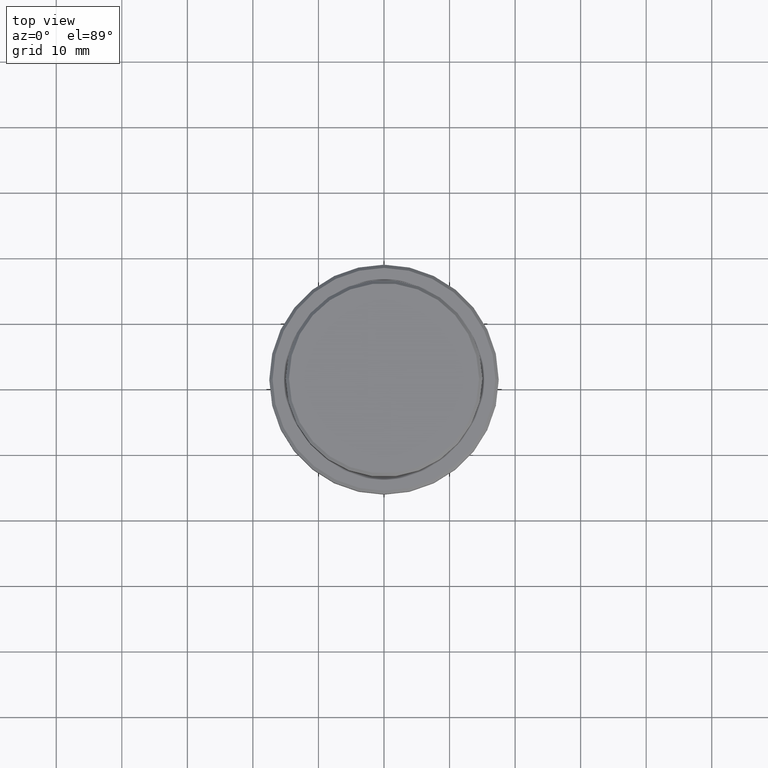
[diagram: clean part render]
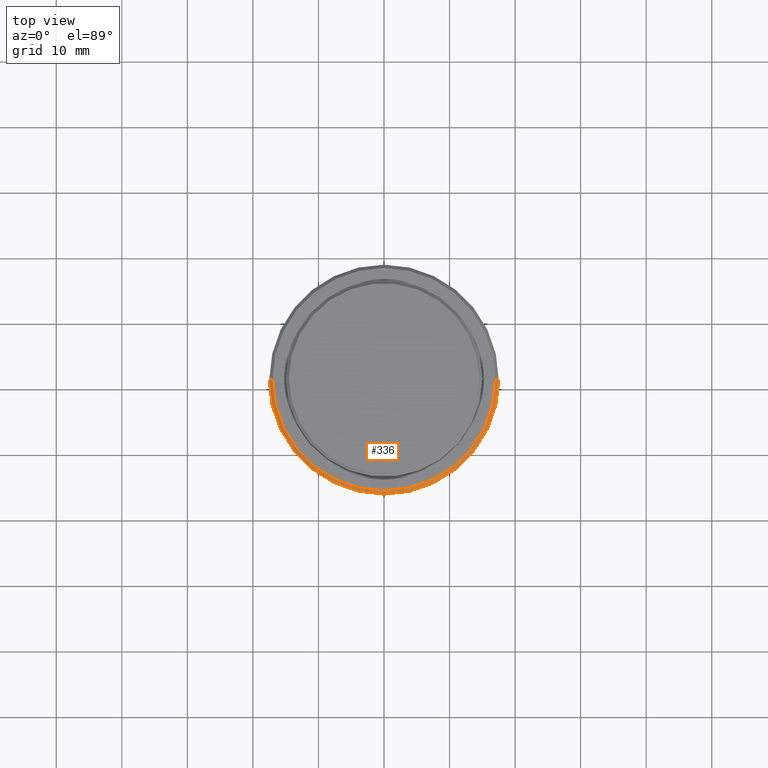
[diagram: same view with one face highlighted and labeled with its STEP entity id]
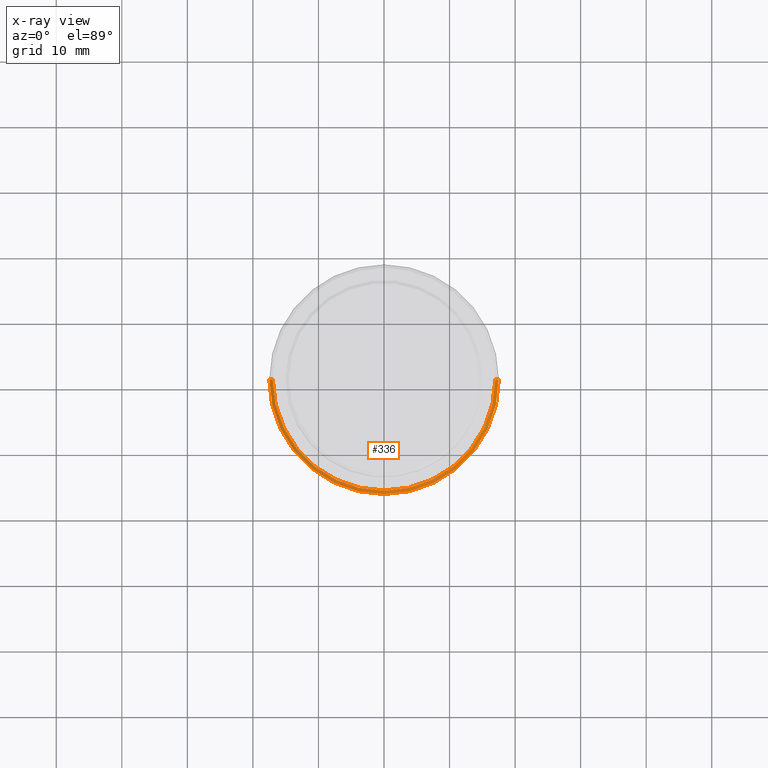
[diagram: x-ray of the same camera — body ghosted, the highlighted face saturated]
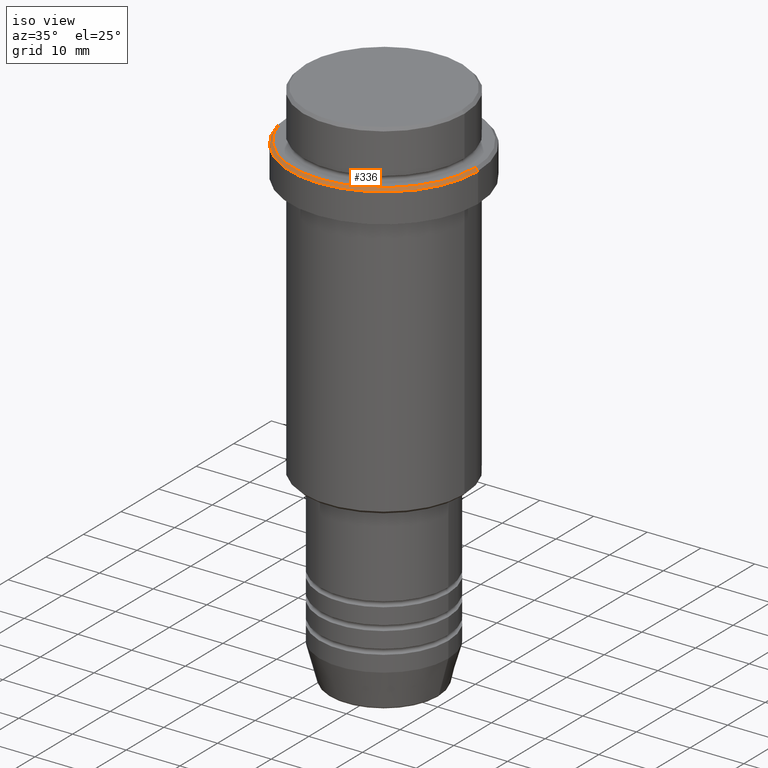
[diagram: same view with one face highlighted and labeled with its STEP entity id]
A machine part, top view. The second image highlights one B-rep face of the part: STEP entity #336.
The next image is the same camera in x-ray: the body ghosted, the highlighted face saturated — about 0% of this face is hidden behind the body in this view.
A second angle (iso view) of the same face is appended — the face is thin or edge-on in the first view.
In plain terms, the highlighted conical surface has half-angle 45 deg.
Its self-contained STEP definition (entity closure, byte-faithful):
#21 = LINE ( 'NONE', #1332, #367 ) ;
#91 = EDGE_CURVE ( 'NONE', #609, #312, #21, .T. ) ;
#139 = VECTOR ( 'NONE', #866, 1000.000000000000114 ) ;
#180 = EDGE_CURVE ( 'NONE', #879, #312, #1265, .T. ) ;
#275 = CARTESIAN_POINT ( 'NONE',  ( 0.000000000000000000, 0.000000000000000000, -9.500000000000026645 ) ) ;
#312 = VERTEX_POINT ( 'NONE', #732 ) ;
#336 = ADVANCED_FACE ( 'NONE', ( #1164 ), #906, .T. ) ;
#367 = VECTOR ( 'NONE', #577, 1000.000000000000114 ) ;
#414 = LINE ( 'NONE', #773, #139 ) ;
#454 = DIRECTION ( 'NONE',  ( 1.000000000000000000, 0.000000000000000000, 0.000000000000000000 ) ) ;
#500 = DIRECTION ( 'NONE',  ( 0.000000000000000000, 0.000000000000000000, -1.000000000000000000 ) ) ;
#522 = CARTESIAN_POINT ( 'NONE',  ( 16.99999999999997513, 2.112515728529182883E-15, -9.000000000000000000 ) ) ;
#531 = ORIENTED_EDGE ( 'NONE', *, *, #91, .T. ) ;
#577 = DIRECTION ( 'NONE',  ( -0.7071067811865474617, 0.000000000000000000, -0.7071067811865474617 ) ) ;
#609 = VERTEX_POINT ( 'NONE', #1056 ) ;
#660 = AXIS2_PLACEMENT_3D ( 'NONE', #1222, #674, #454 ) ;
#674 = DIRECTION ( 'NONE',  ( -0.000000000000000000, -0.000000000000000000, 1.000000000000000000 ) ) ;
#732 = CARTESIAN_POINT ( 'NONE',  ( -17.50000000000000000, 2.143131898507868248E-15, -9.500000000000026645 ) ) ;
#747 = DIRECTION ( 'NONE',  ( 0.000000000000000000, 0.000000000000000000, -1.000000000000000000 ) ) ;
#755 = CIRCLE ( 'NONE', #660, 16.99999999999997513 ) ;
#773 = CARTESIAN_POINT ( 'NONE',  ( 16.99999999999997513, 2.081899558550497519E-15, -9.000000000000000000 ) ) ;
#782 = ORIENTED_EDGE ( 'NONE', *, *, #1096, .F. ) ;
#809 = CARTESIAN_POINT ( 'NONE',  ( 17.50000000000000000, 0.000000000000000000, -9.500000000000026645 ) ) ;
#825 = DIRECTION ( 'NONE',  ( 1.000000000000000000, 0.000000000000000000, 0.000000000000000000 ) ) ;
#866 = DIRECTION ( 'NONE',  ( 0.7071067811865474617, 8.659560562354932858E-17, -0.7071067811865474617 ) ) ;
#879 = VERTEX_POINT ( 'NONE', #809 ) ;
#898 = EDGE_LOOP ( 'NONE', ( #782, #1383, #531, #1320 ) ) ;
#906 = CONICAL_SURFACE ( 'NONE', #1087, 16.99999999999997513, 0.7853981633974482790 ) ;
#1056 = CARTESIAN_POINT ( 'NONE',  ( -16.99999999999997513, 0.000000000000000000, -9.000000000000000000 ) ) ;
#1087 = AXIS2_PLACEMENT_3D ( 'NONE', #1292, #747, #1182 ) ;
#1096 = EDGE_CURVE ( 'NONE', #1229, #879, #414, .T. ) ;
#1164 = FACE_OUTER_BOUND ( 'NONE', #898, .T. ) ;
#1182 = DIRECTION ( 'NONE',  ( -1.000000000000000000, 0.000000000000000000, 0.000000000000000000 ) ) ;
#1222 = CARTESIAN_POINT ( 'NONE',  ( 0.000000000000000000, 0.000000000000000000, -9.000000000000000000 ) ) ;
#1229 = VERTEX_POINT ( 'NONE', #522 ) ;
#1265 = CIRCLE ( 'NONE', #1330, 17.50000000000000000 ) ;
#1282 = EDGE_CURVE ( 'NONE', #609, #1229, #755, .T. ) ;
#1292 = CARTESIAN_POINT ( 'NONE',  ( 0.000000000000000000, 0.000000000000000000, -9.000000000000000000 ) ) ;
#1320 = ORIENTED_EDGE ( 'NONE', *, *, #180, .F. ) ;
#1330 = AXIS2_PLACEMENT_3D ( 'NONE', #275, #500, #825 ) ;
#1332 = CARTESIAN_POINT ( 'NONE',  ( -16.99999999999997513, 0.000000000000000000, -9.000000000000000000 ) ) ;
#1383 = ORIENTED_EDGE ( 'NONE', *, *, #1282, .F. ) ;